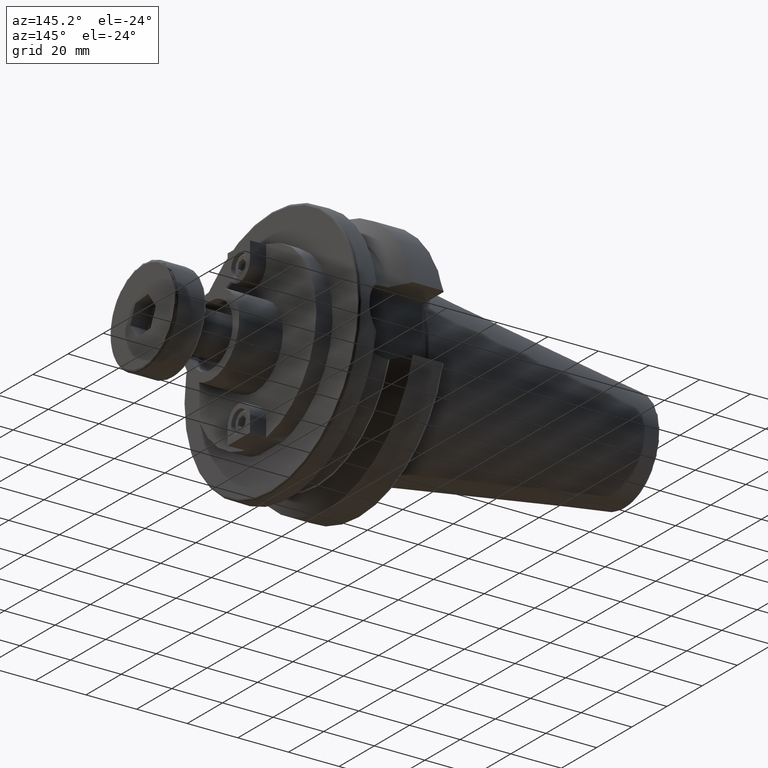
[diagram: clean part render]
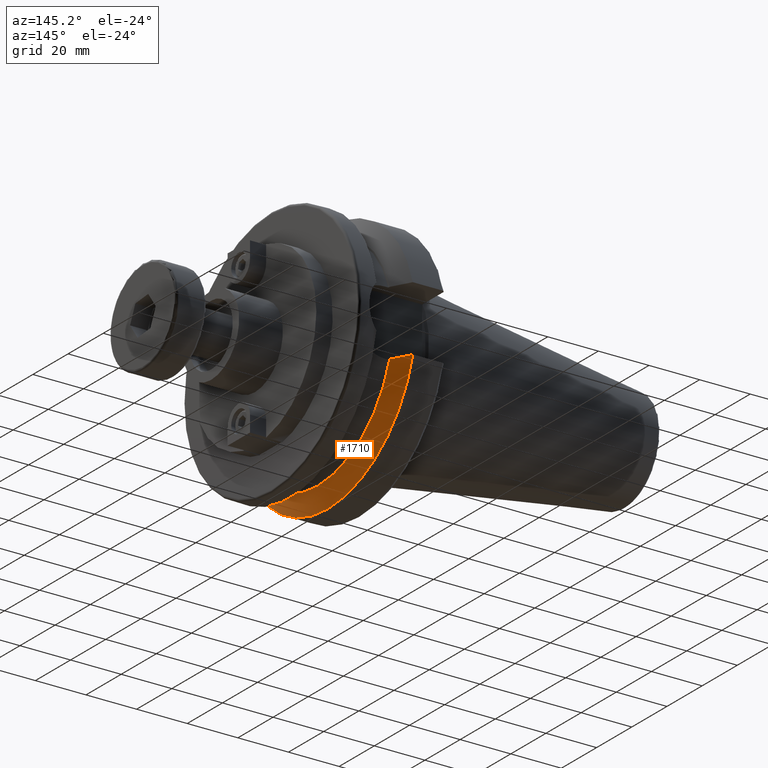
[diagram: same view with one face highlighted and labeled with its STEP entity id]
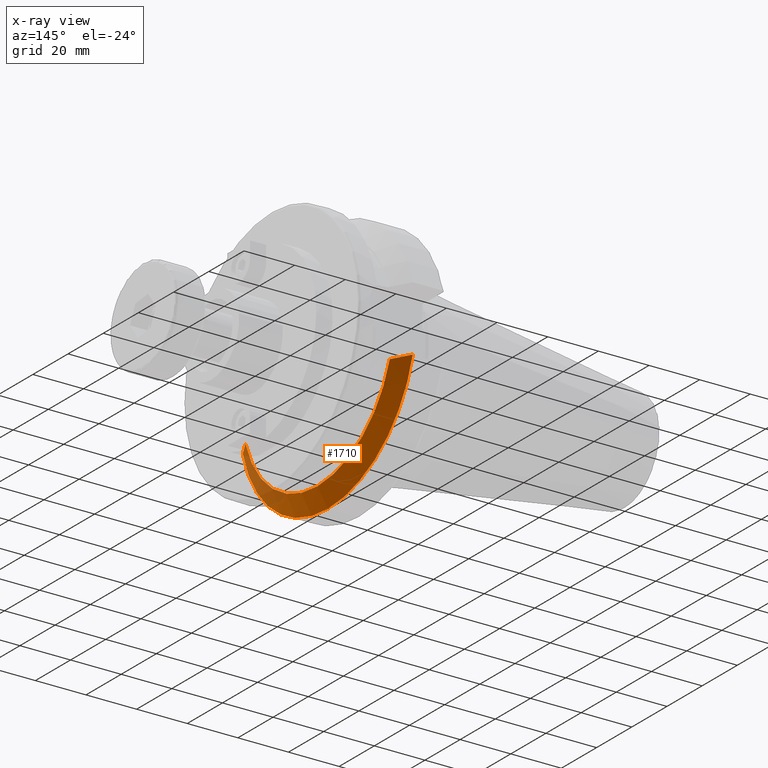
[diagram: x-ray of the same camera — body ghosted, the highlighted face saturated]
A machine part, auxiliary view. The second image highlights one B-rep face of the part: STEP entity #1710.
The next image is the same camera in x-ray: the body ghosted, the highlighted face saturated — about 13% of this face is hidden behind the body in this view.
In plain terms, the highlighted conical surface has half-angle 60.125 deg.
Its self-contained STEP definition (entity closure, byte-faithful):
#65=(
BOUNDED_CURVE()
B_SPLINE_CURVE(2,(#2867,#2868,#2869),.UNSPECIFIED.,.F.,.F.)
B_SPLINE_CURVE_WITH_KNOTS((3,3),(0.,0.834435209413224),.UNSPECIFIED.)
CURVE()
GEOMETRIC_REPRESENTATION_ITEM()
RATIONAL_B_SPLINE_CURVE((1.,1.003100982064,1.))
REPRESENTATION_ITEM('')
);
#66=(
BOUNDED_CURVE()
B_SPLINE_CURVE(2,(#2924,#2925,#2926),.UNSPECIFIED.,.F.,.F.)
B_SPLINE_CURVE_WITH_KNOTS((3,3),(0.,0.834435209413224),.UNSPECIFIED.)
CURVE()
GEOMETRIC_REPRESENTATION_ITEM()
RATIONAL_B_SPLINE_CURVE((1.,1.003100982064,1.))
REPRESENTATION_ITEM('')
);
#121=CONICAL_SURFACE('',#1950,46.4904524201025,1.04937921276159);
#178=CIRCLE('',#1949,42.9809048402051);
#179=CIRCLE('',#1951,50.);
#280=FACE_OUTER_BOUND('',#390,.T.);
#390=EDGE_LOOP('',(#1283,#1284,#1285,#1286));
#770=VERTEX_POINT('',#2864);
#771=VERTEX_POINT('',#2866);
#780=VERTEX_POINT('',#2918);
#781=VERTEX_POINT('',#2922);
#952=EDGE_CURVE('',#771,#770,#65,.T.);
#968=EDGE_CURVE('',#771,#780,#178,.T.);
#970=EDGE_CURVE('',#770,#781,#179,.T.);
#971=EDGE_CURVE('',#781,#780,#66,.T.);
#1283=ORIENTED_EDGE('',*,*,#952,.T.);
#1284=ORIENTED_EDGE('',*,*,#970,.T.);
#1285=ORIENTED_EDGE('',*,*,#971,.T.);
#1286=ORIENTED_EDGE('',*,*,#968,.F.);
#1710=ADVANCED_FACE('',(#280),#121,.T.);
#1949=AXIS2_PLACEMENT_3D('',#2919,#2275,#2276);
#1950=AXIS2_PLACEMENT_3D('',#2921,#2278,#2279);
#1951=AXIS2_PLACEMENT_3D('',#2923,#2280,#2281);
#2275=DIRECTION('center_axis',(1.,0.,0.));
#2276=DIRECTION('ref_axis',(0.,0.,-1.));
#2278=DIRECTION('center_axis',(-1.,0.,0.));
#2279=DIRECTION('ref_axis',(0.,1.,0.));
#2280=DIRECTION('center_axis',(1.,0.,0.));
#2281=DIRECTION('ref_axis',(0.,0.,-1.));
#2864=CARTESIAN_POINT('',(15.6679155870539,-48.320570153921,-12.85));
#2866=CARTESIAN_POINT('',(19.7,-41.0150665107685,-12.85));
#2867=CARTESIAN_POINT('Ctrl Pts',(19.7,-41.0150665107685,-12.85));
#2868=CARTESIAN_POINT('Ctrl Pts',(17.8488214944614,-44.3920734073185,-12.85));
#2869=CARTESIAN_POINT('Ctrl Pts',(15.6679155870539,-48.320570153921,-12.85));
#2918=CARTESIAN_POINT('',(19.7,41.0150665107685,-12.85));
#2919=CARTESIAN_POINT('Origin',(19.7,0.,0.));
#2921=CARTESIAN_POINT('Origin',(17.6839577935269,0.,0.));
#2922=CARTESIAN_POINT('',(15.6679155870539,48.320570153921,-12.85));
#2923=CARTESIAN_POINT('Origin',(15.6679155870539,0.,0.));
#2924=CARTESIAN_POINT('Ctrl Pts',(15.6679155870539,48.320570153921,-12.85));
#2925=CARTESIAN_POINT('Ctrl Pts',(17.8488214944614,44.3920734073185,-12.85));
#2926=CARTESIAN_POINT('Ctrl Pts',(19.7,41.0150665107685,-12.85));